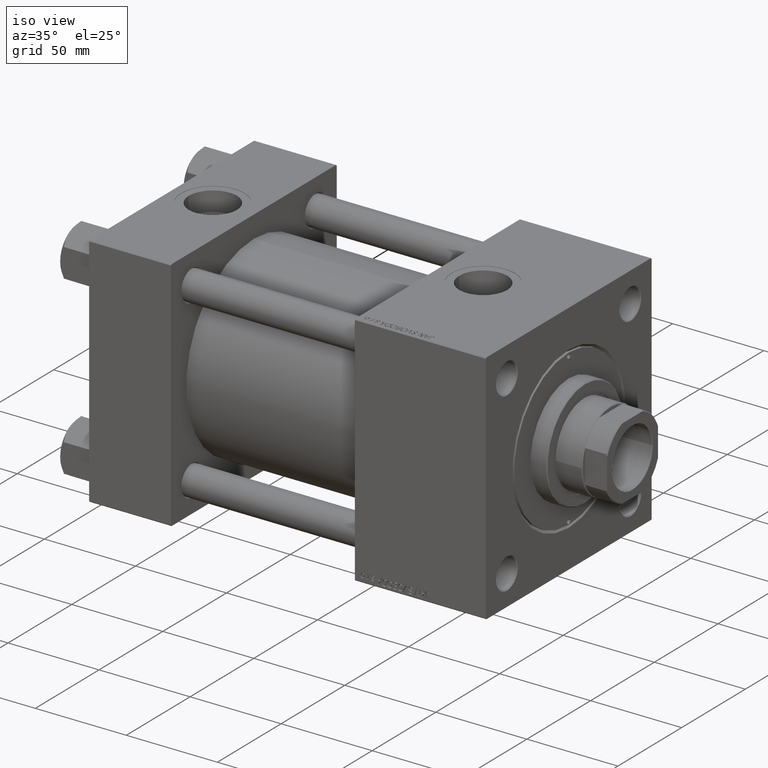
[diagram: clean part render]
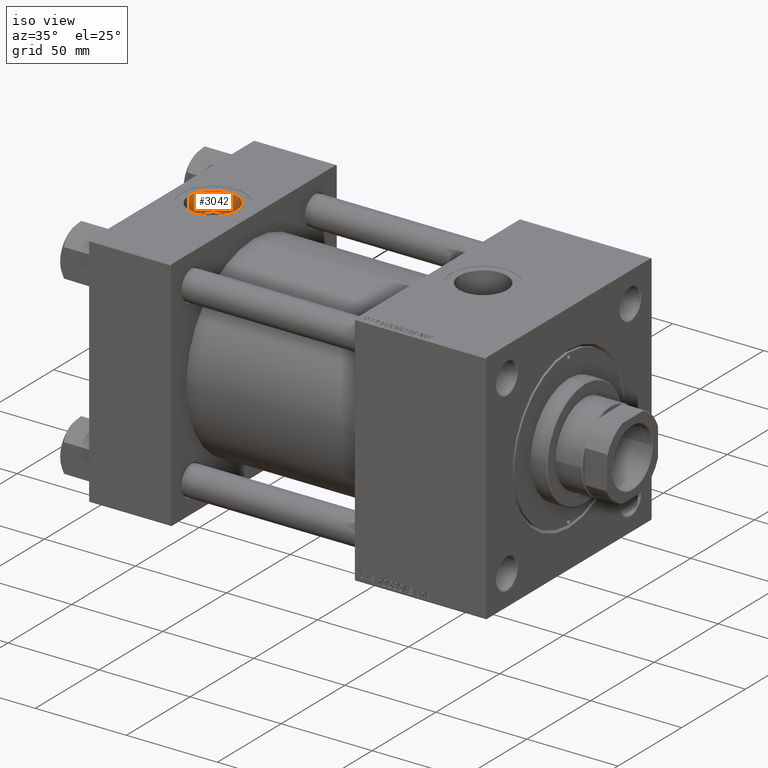
[diagram: same view with one face highlighted and labeled with its STEP entity id]
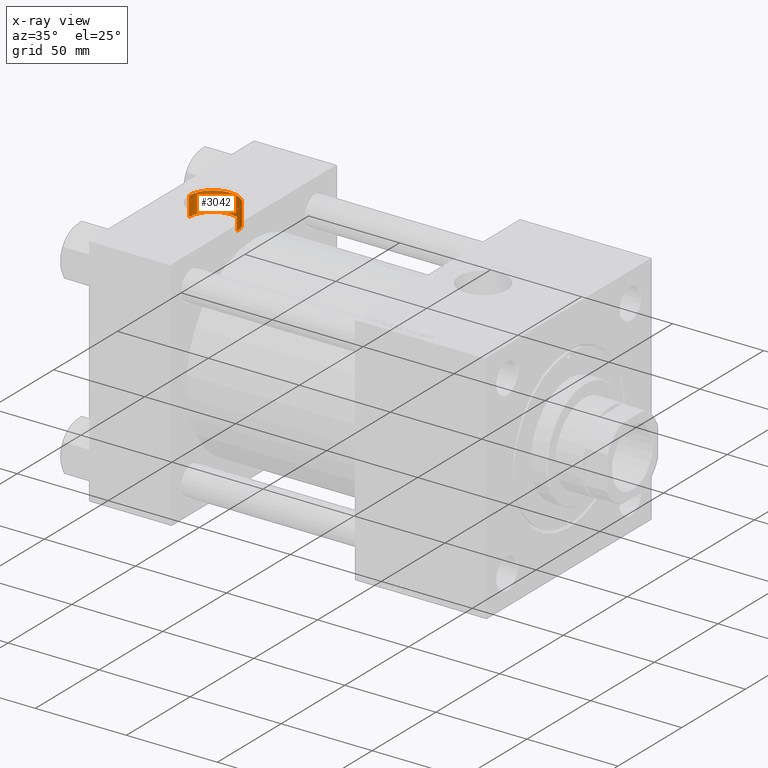
[diagram: x-ray of the same camera — body ghosted, the highlighted face saturated]
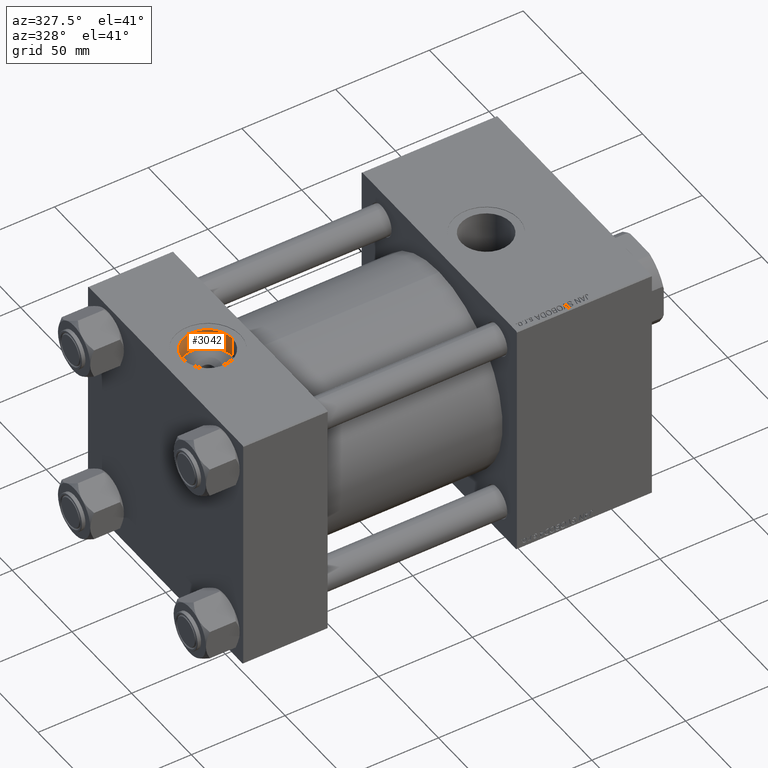
[diagram: same view with one face highlighted and labeled with its STEP entity id]
A machine part, iso view. The second image highlights one B-rep face of the part: STEP entity #3042.
The next image is the same camera in x-ray: the body ghosted, the highlighted face saturated — about 0% of this face is hidden behind the body in this view.
A second angle (auxiliary view) of the same face is appended — the face is thin or edge-on in the first view.
In plain terms, the highlighted cylindrical surface (edge-blend (fillet) strip) has radius 13.22 mm, axis along (0, 0, 1).
Its self-contained STEP definition (entity closure, byte-faithful):
#2335 = FACE_OUTER_BOUND ( 'NONE', #11562, .T. ) ;
#2472 = DIRECTION ( 'NONE',  ( 1.000000000000000000, 0.000000000000000000, 0.000000000000000000 ) ) ;
#3042 = ADVANCED_FACE ( 'NONE', ( #2335 ), #29797, .F. ) ;
#4276 = CARTESIAN_POINT ( 'NONE',  ( 35.71999999999999886, -8.673617379884035472E-15, 54.19999999999999574 ) ) ;
#6493 = EDGE_CURVE ( 'NONE', #12471, #39230, #19798, .T. ) ;
#7074 = DIRECTION ( 'NONE',  ( 0.000000000000000000, 0.000000000000000000, 1.000000000000000000 ) ) ;
#8033 = VECTOR ( 'NONE', #25555, 1000.000000000000000 ) ;
#8276 = AXIS2_PLACEMENT_3D ( 'NONE', #29334, #10332, #49392 ) ;
#10144 = ORIENTED_EDGE ( 'NONE', *, *, #24306, .T. ) ;
#10332 = DIRECTION ( 'NONE',  ( 0.000000000000000000, 0.000000000000000000, 1.000000000000000000 ) ) ;
#11325 = CARTESIAN_POINT ( 'NONE',  ( 35.71999999999999886, -8.673617379884035472E-15, 64.79999999999999716 ) ) ;
#11562 = EDGE_LOOP ( 'NONE', ( #20114, #16096, #10144, #38307 ) ) ;
#12471 = VERTEX_POINT ( 'NONE', #4276 ) ;
#16095 = VECTOR ( 'NONE', #33538, 1000.000000000000000 ) ;
#16096 = ORIENTED_EDGE ( 'NONE', *, *, #6493, .F. ) ;
#18356 = EDGE_CURVE ( 'NONE', #39230, #32658, #49742, .T. ) ;
#18658 = AXIS2_PLACEMENT_3D ( 'NONE', #37667, #7074, #2472 ) ;
#19798 = CIRCLE ( 'NONE', #8276, 13.22000000000000242 ) ;
#20114 = ORIENTED_EDGE ( 'NONE', *, *, #18356, .F. ) ;
#22105 = CARTESIAN_POINT ( 'NONE',  ( 22.50000000000000000, -8.673617379884035472E-15, 54.19999999999999574 ) ) ;
#22760 = CIRCLE ( 'NONE', #18658, 13.22000000000000242 ) ;
#22998 = CARTESIAN_POINT ( 'NONE',  ( 9.279999999999994031, -7.054634311411234321E-15, 54.19999999999999574 ) ) ;
#24306 = EDGE_CURVE ( 'NONE', #12471, #38987, #41244, .T. ) ;
#25555 = DIRECTION ( 'NONE',  ( -0.000000000000000000, -0.000000000000000000, 1.000000000000000000 ) ) ;
#26322 = CARTESIAN_POINT ( 'NONE',  ( 9.279999999999994031, -7.054634311411234321E-15, 54.19999999999999574 ) ) ;
#29334 = CARTESIAN_POINT ( 'NONE',  ( 22.50000000000000000, -8.673617379884035472E-15, 54.19999999999999574 ) ) ;
#29797 = CYLINDRICAL_SURFACE ( 'NONE', #34559, 13.22000000000000242 ) ;
#32658 = VERTEX_POINT ( 'NONE', #40731 ) ;
#33538 = DIRECTION ( 'NONE',  ( -0.000000000000000000, -0.000000000000000000, 1.000000000000000000 ) ) ;
#34559 = AXIS2_PLACEMENT_3D ( 'NONE', #22105, #45507, #41641 ) ;
#37667 = CARTESIAN_POINT ( 'NONE',  ( 22.50000000000000000, -8.673617379884035472E-15, 64.79999999999999716 ) ) ;
#38307 = ORIENTED_EDGE ( 'NONE', *, *, #41030, .T. ) ;
#38987 = VERTEX_POINT ( 'NONE', #11325 ) ;
#39230 = VERTEX_POINT ( 'NONE', #22998 ) ;
#40731 = CARTESIAN_POINT ( 'NONE',  ( 9.279999999999994031, -7.054634311411234321E-15, 64.79999999999999716 ) ) ;
#41030 = EDGE_CURVE ( 'NONE', #38987, #32658, #22760, .T. ) ;
#41244 = LINE ( 'NONE', #49474, #8033 ) ;
#41641 = DIRECTION ( 'NONE',  ( 1.000000000000000000, 0.000000000000000000, 0.000000000000000000 ) ) ;
#45507 = DIRECTION ( 'NONE',  ( -0.000000000000000000, -0.000000000000000000, 1.000000000000000000 ) ) ;
#49392 = DIRECTION ( 'NONE',  ( 1.000000000000000000, 0.000000000000000000, 0.000000000000000000 ) ) ;
#49474 = CARTESIAN_POINT ( 'NONE',  ( 35.71999999999999886, -8.673617379884035472E-15, 54.19999999999999574 ) ) ;
#49742 = LINE ( 'NONE', #26322, #16095 ) ;